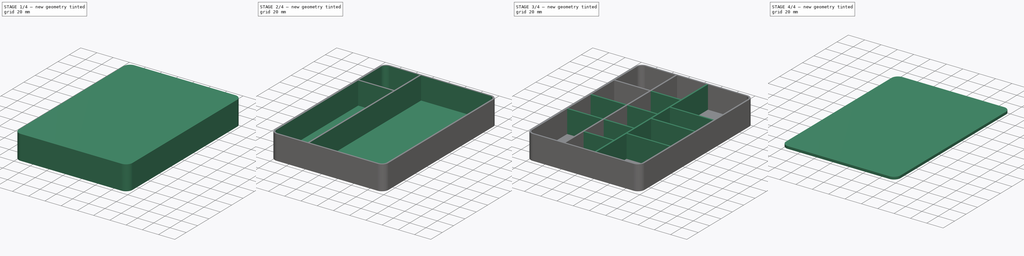
[diagram: build sequence overview — one tinted view per stage of 4, left to right]
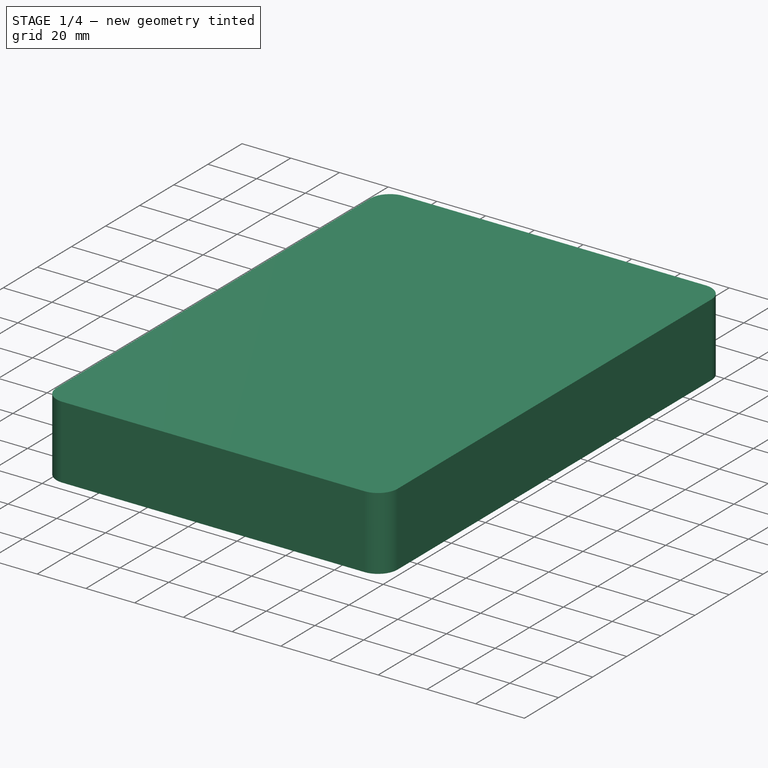
[diagram: stage 1 of 4 — iso view after this stage's code; geometry added in this stage tinted green]
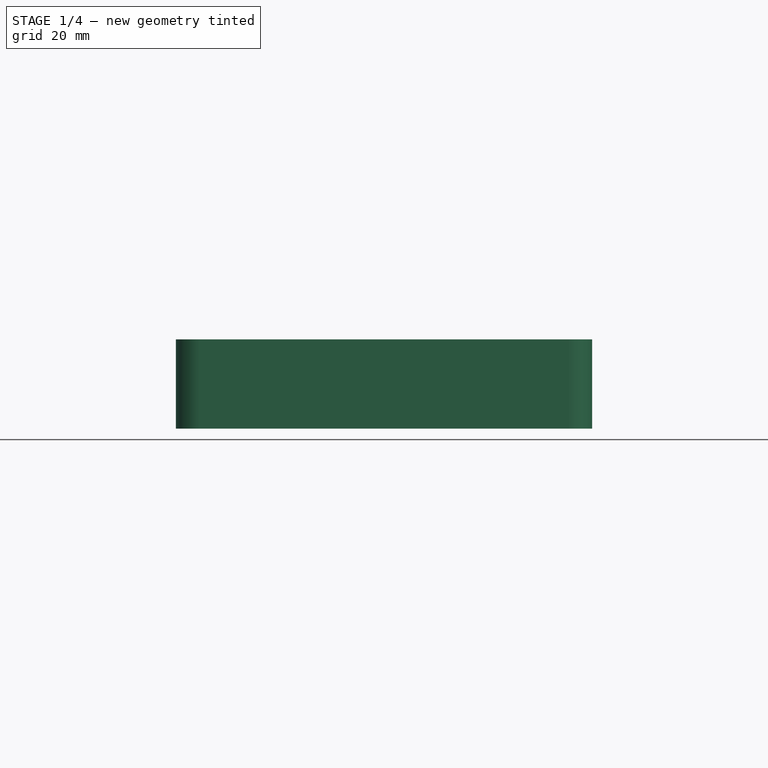
[diagram: stage 1 of 4 — front view after this stage's code; geometry added in this stage tinted green]
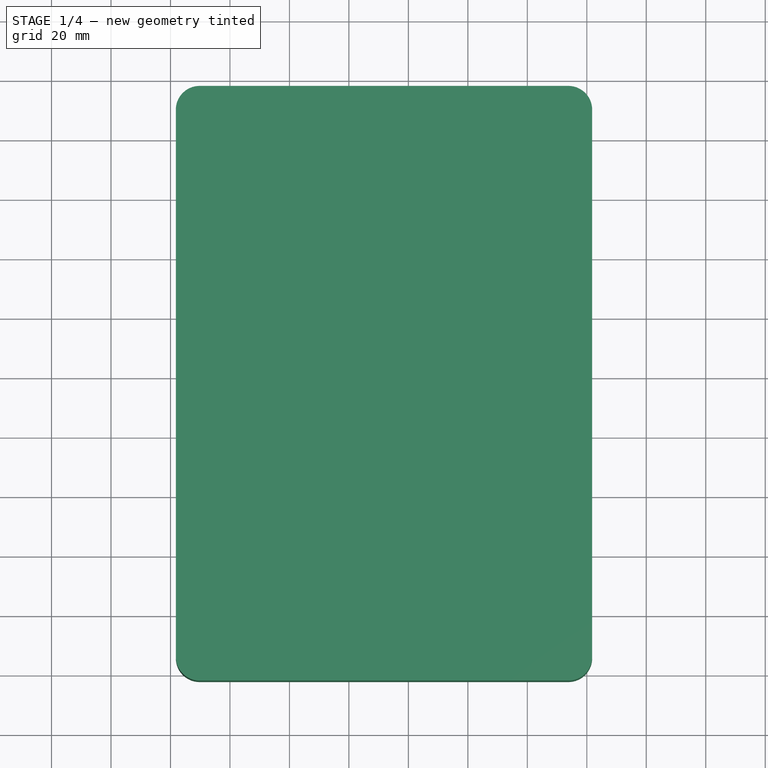
[diagram: stage 1 of 4 — top view after this stage's code; geometry added in this stage tinted green]
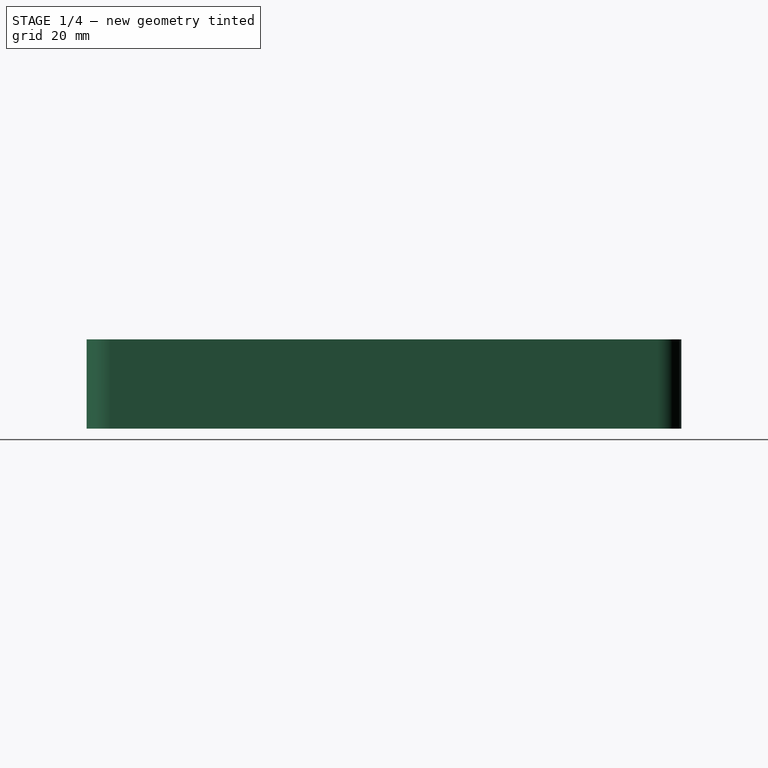
[diagram: stage 1 of 4 — right view after this stage's code; geometry added in this stage tinted green]
FCSTD DOCUMENT  (FreeCAD 1.2R20251230 (Git shallow))
Label: box_1
License: All rights reserved
LicenseURL: https://en.wikipedia.org/wiki/All_rights_reserved
objects: PartDesign::Pad×6, Sketcher::SketchObject×5, PartDesign::Thickness×2, PartDesign::Body×2, App::Point×2, PartDesign::Fillet×1, PartDesign::SubShapeBinder×1
note: 40 computed .brp shape members not serialized (recipe doc carries the construction recipe); baked Part::Feature solids carry a one-line shape summary decoded from their .brp

FEATURE [Sketcher::SketchObject] Sketch
  ArcFitTolerance = 1e-06
  ExternalTypes = [0]
  FullyConstrained = false
  MakeInternals = false
  sketch-geometry (4):
    g0: LineSegment StartX=81.8036 StartY=117.899 StartZ=0 EndX=-58.1964 EndY=117.899 EndZ=0
    g1: LineSegment StartX=-58.1964 StartY=117.899 StartZ=0 EndX=-58.1964 EndY=-82.1008 EndZ=0
    g2: LineSegment StartX=-58.1964 StartY=-82.1008 StartZ=0 EndX=81.8036 EndY=-82.1008 EndZ=0
    g3: LineSegment StartX=81.8036 StartY=-82.1008 StartZ=0 EndX=81.8036 EndY=117.899 EndZ=0
  constraints (10):
    c: Coincident(g0,g1)
    c: Coincident(g1,g2)
    c: Coincident(g2,g3)
    c: Coincident(g3,g0)
    c: Horizontal(g0)
    c: Horizontal(g2)
    c: Vertical(g1)
    c: Vertical(g3)
    c: DistanceY(g3,g3) = 200
    c: DistanceX(g0,g0) = 140
FEATURE [PartDesign::Pad] Pad
  Direction = (0,0,1)
  Length = 30
  Length2 = 10
  Profile = -> Sketch
  ReferenceAxis = -> Sketch [N_Axis]
  Refine = true
  SideType = 0
  Suppressed = false
  Type = 0
  Type2 = 0
FEATURE [PartDesign::Fillet] Fillet
  Base = -> Pad [Edge5,Edge8,Edge1,Edge2]
  BaseFeature = -> Pad
  Radius = 8
  Refine = true
  SupportTransform = false
  Suppressed = false
  UseAllEdges = false
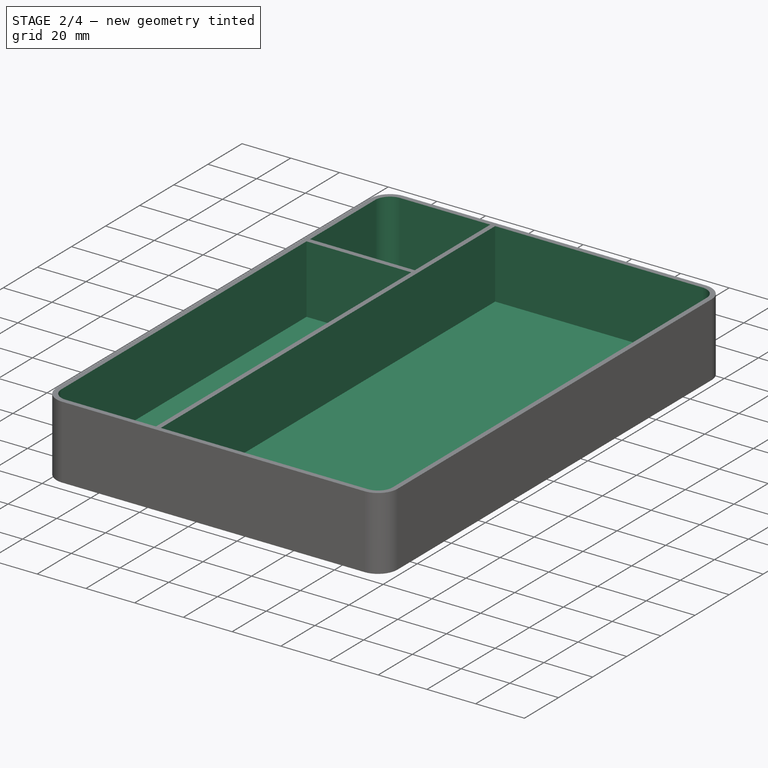
[diagram: stage 2 of 4 — iso view after this stage's code; geometry added in this stage tinted green]
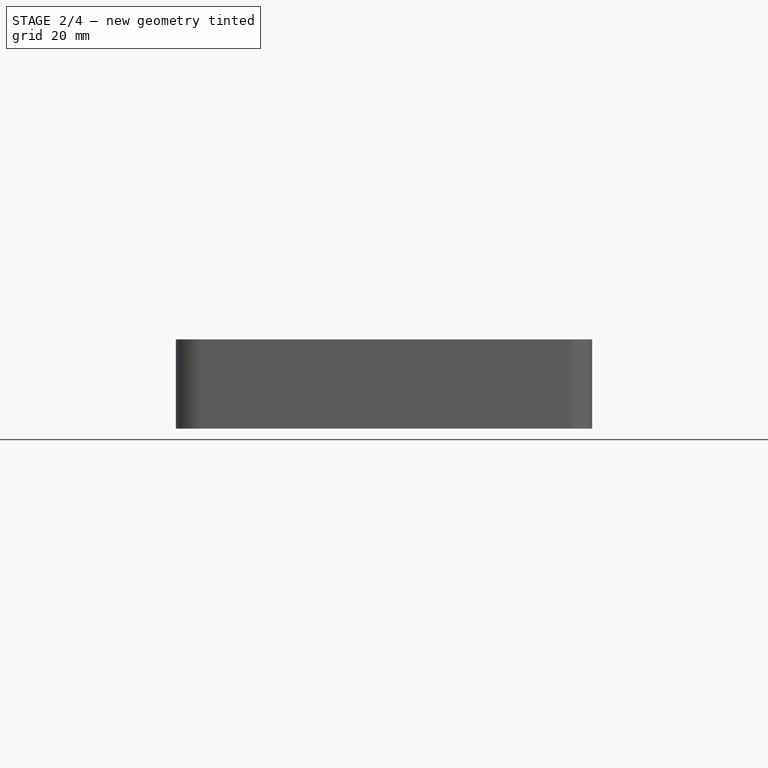
[diagram: stage 2 of 4 — front view after this stage's code; geometry added in this stage tinted green]
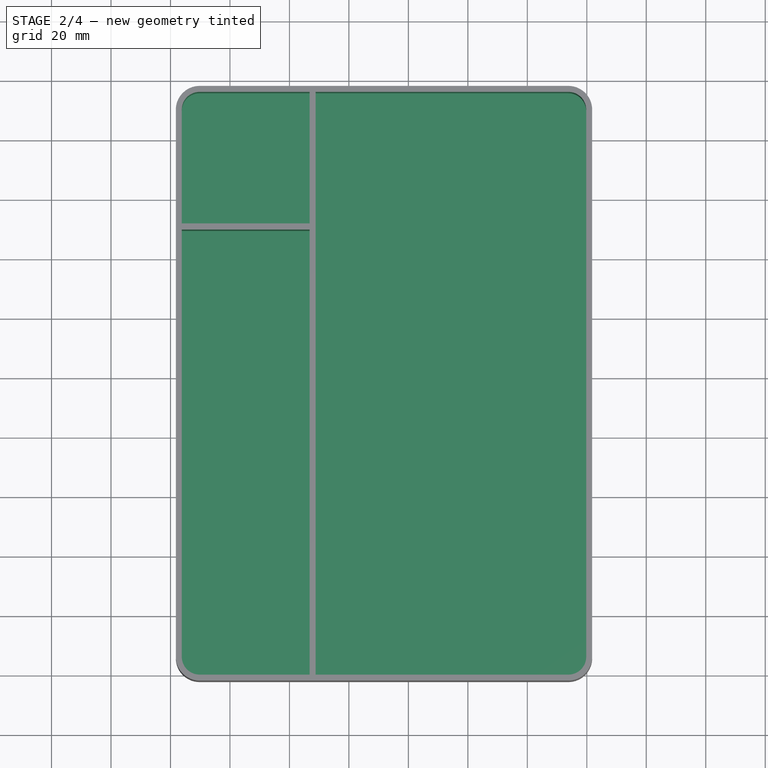
[diagram: stage 2 of 4 — top view after this stage's code; geometry added in this stage tinted green]
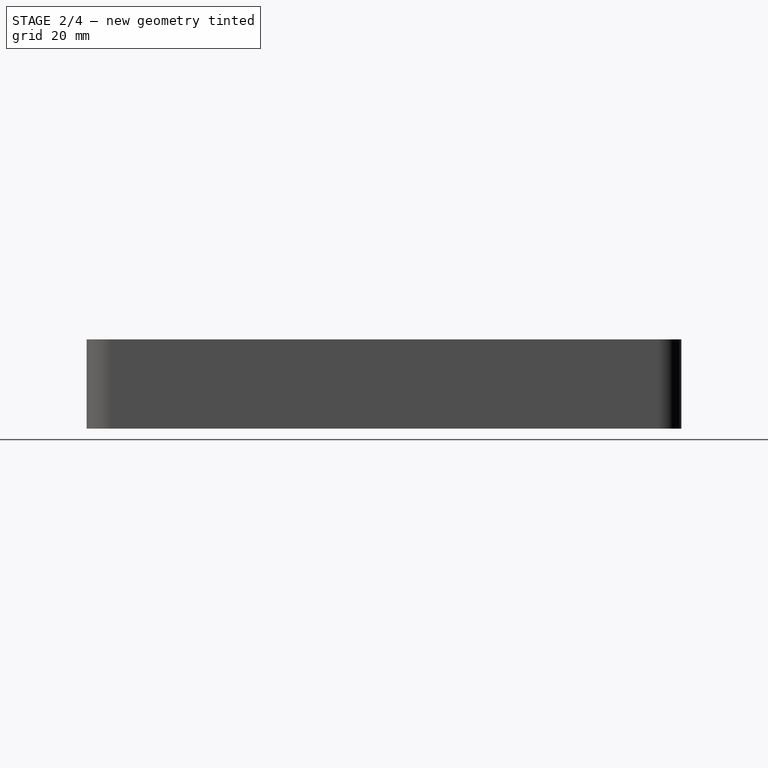
[diagram: stage 2 of 4 — right view after this stage's code; geometry added in this stage tinted green]
FEATURE [PartDesign::Thickness] Thickness
  Base = -> Fillet [Face5]
  BaseFeature = -> Fillet
  Intersection = false
  Join = 0
  Mode = 0
  Refine = true
  Reversed = true
  SupportTransform = false
  Suppressed = false
  Value = 2
FEATURE [Sketcher::SketchObject] Sketch001
  ArcFitTolerance = 1e-06
  AttachmentSupport = -> [Thickness]
  ExternalGeometry = -> [Thickness]
  ExternalTypes = [0]
  FullyConstrained = false
  MakeInternals = false
  MapMode = 5
  Placement = pos=(0,0,30) rot=(0,0,1;0rad)
  sketch-geometry (8):
    g0: LineSegment StartX=-13.1964 StartY=115.899 StartZ=0 EndX=-11.1964 EndY=115.899 EndZ=0
    g1: LineSegment StartX=-11.1964 StartY=115.899 StartZ=0 EndX=-11.1964 EndY=-80.1008 EndZ=0
    g2: LineSegment StartX=-11.1964 StartY=-80.1008 StartZ=0 EndX=-13.1964 EndY=-80.1008 EndZ=0
    g3: LineSegment StartX=-13.1964 StartY=-80.1008 StartZ=0 EndX=-13.1964 EndY=115.899 EndZ=0
    g4: LineSegment StartX=-56.1964 StartY=71.647 StartZ=0 EndX=-56.1964 EndY=69.5939 EndZ=0
    g5: LineSegment StartX=-56.1964 StartY=69.5939 StartZ=0 EndX=-13.1964 EndY=69.5939 EndZ=0
    g6: LineSegment StartX=-13.1964 StartY=69.5939 StartZ=0 EndX=-13.1964 EndY=71.647 EndZ=0
    g7: LineSegment StartX=-13.1964 StartY=71.647 StartZ=0 EndX=-56.1964 EndY=71.647 EndZ=0
  constraints (22):
    c: Coincident(g0,g1)
    c: Coincident(g1,g2)
    c: Coincident(g2,g3)
    c: Coincident(g3,g0)
    c: Horizontal(g0)
    c: Horizontal(g2)
    c: Vertical(g1)
    c: Vertical(g3)
    c: PointOnObject(g0,g-3)
    c: PointOnObject(g1,g-6)
    c: Distance(g-5,g1) = 45
    c: DistanceX(g0,g0) = 2
    c: Coincident(g4,g5)
    c: Coincident(g5,g6)
    c: Coincident(g6,g7)
    c: Coincident(g7,g4)
    c: Vertical(g4)
    c: Vertical(g6)
    c: Horizontal(g5)
    c: Horizontal(g7)
    c: PointOnObject(g4,g-5)
    c: PointOnObject(g5,g3)
FEATURE [PartDesign::Pad] Pad001
  BaseFeature = -> Thickness
  Direction = (0,0,1)
  Length = 10
  Length2 = 10
  Profile = -> Sketch001
  ReferenceAxis = -> Sketch001 [N_Axis]
  Refine = true
  SideType = 0
  Suppressed = false
  Type = 3
  Type2 = 0
  UpToFace = -> Thickness [Face19]
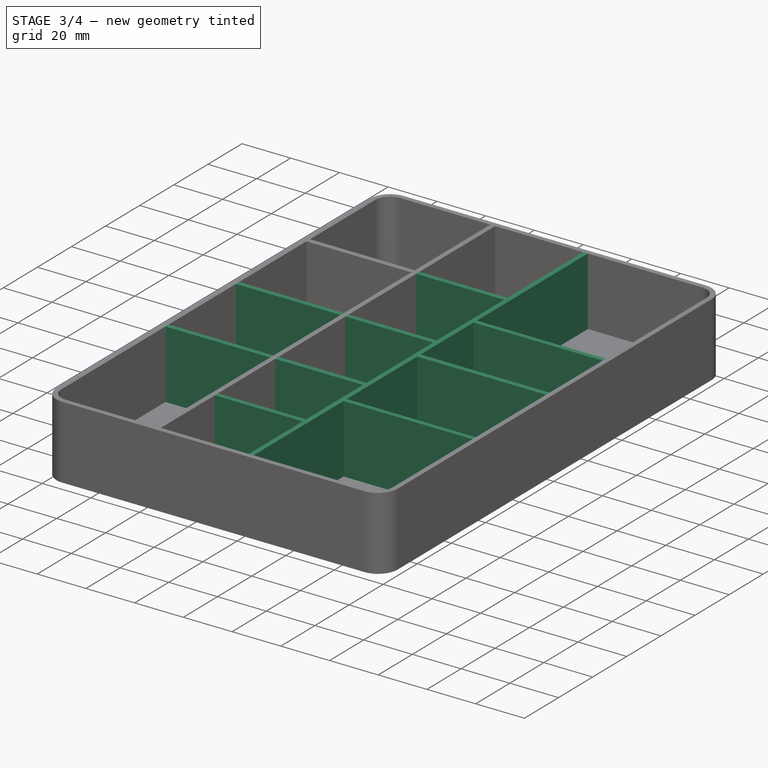
[diagram: stage 3 of 4 — iso view after this stage's code; geometry added in this stage tinted green]
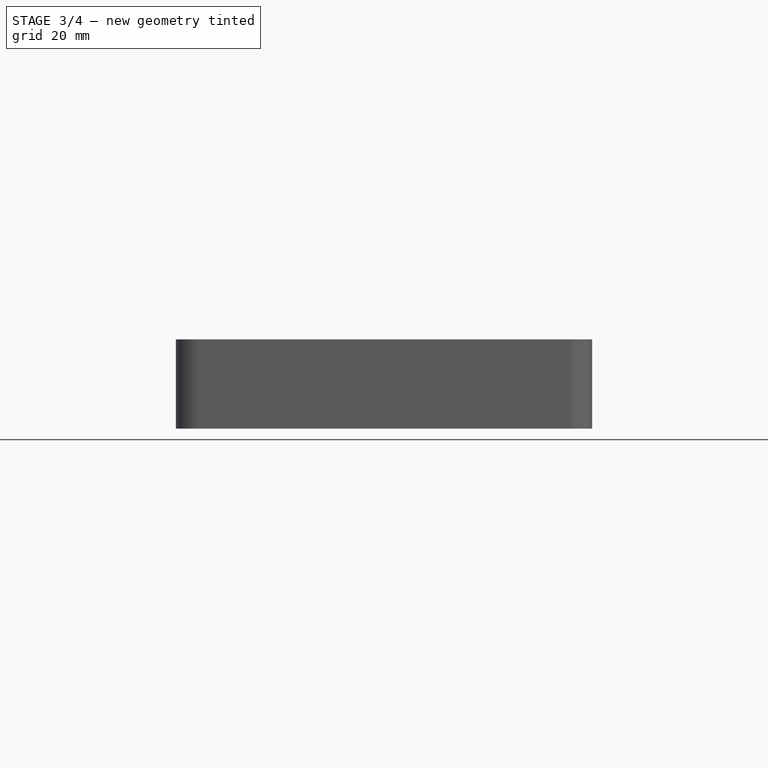
[diagram: stage 3 of 4 — front view after this stage's code; geometry added in this stage tinted green]
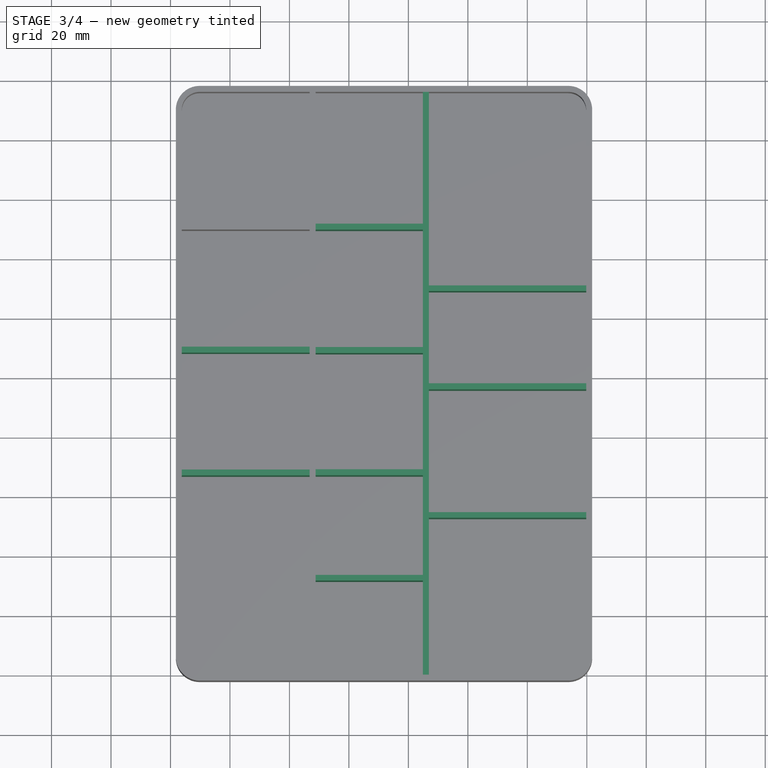
[diagram: stage 3 of 4 — top view after this stage's code; geometry added in this stage tinted green]
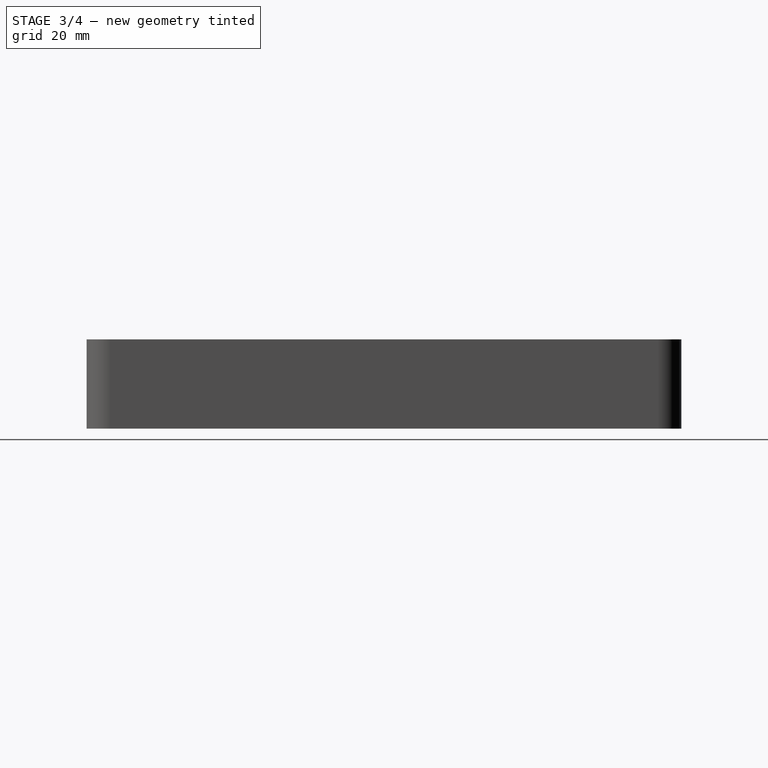
[diagram: stage 3 of 4 — right view after this stage's code; geometry added in this stage tinted green]
FEATURE [Sketcher::SketchObject] Sketch002
  ArcFitTolerance = 1e-06
  AttachmentSupport = -> [Pad001]
  ExternalGeometry = -> [Pad001]
  ExternalTypes = [0]
  FullyConstrained = false
  MakeInternals = false
  MapMode = 5
  Placement = pos=(0,0,2) rot=(0,0,1;0rad)
  sketch-geometry (32):
    g0: LineSegment StartX=24.8863 StartY=115.899 StartZ=0 EndX=24.8863 EndY=-80.1008 EndZ=0
    g1: LineSegment StartX=24.8863 StartY=-80.1008 StartZ=0 EndX=26.8863 EndY=-80.1008 EndZ=0
    g2: LineSegment StartX=26.8863 StartY=-80.1008 StartZ=0 EndX=26.8863 EndY=115.899 EndZ=0
    g3: LineSegment StartX=26.8863 StartY=115.899 StartZ=0 EndX=24.8863 EndY=115.899 EndZ=0
    g4: LineSegment StartX=-11.1964 StartY=71.5636 StartZ=0 EndX=-11.1964 EndY=69.5616 EndZ=0
    g5: LineSegment StartX=-11.1964 StartY=69.5616 StartZ=0 EndX=24.8863 EndY=69.5616 EndZ=0
    g6: LineSegment StartX=24.8863 StartY=69.5616 StartZ=0 EndX=24.8863 EndY=71.5636 EndZ=0
    g7: LineSegment StartX=24.8863 StartY=71.5636 StartZ=0 EndX=-11.1964 EndY=71.5636 EndZ=0
    g8: LineSegment StartX=-11.1964 StartY=30.0997 StartZ=0 EndX=-11.1964 EndY=28.0687 EndZ=0
    g9: LineSegment StartX=-11.1964 StartY=28.0687 StartZ=0 EndX=24.8863 EndY=28.0687 EndZ=0
    g10: LineSegment StartX=24.8863 StartY=28.0687 StartZ=0 EndX=24.8863 EndY=30.0997 EndZ=0
    g11: LineSegment StartX=24.8863 StartY=30.0997 StartZ=0 EndX=-11.1964 EndY=30.0997 EndZ=0
    g12: LineSegment StartX=-11.1964 StartY=-11.0304 StartZ=0 EndX=-11.1964 EndY=-13.0614 EndZ=0
    g13: LineSegment StartX=-11.1964 StartY=-13.0614 StartZ=0 EndX=24.8863 EndY=-13.0614 EndZ=0
    g14: LineSegment StartX=24.8863 StartY=-13.0614 StartZ=0 EndX=24.8863 EndY=-11.0304 EndZ=0
    g15: LineSegment StartX=24.8863 StartY=-11.0304 StartZ=0 EndX=-11.1964 EndY=-11.0304 EndZ=0
    g16: LineSegment StartX=-11.1964 StartY=-46.5596 StartZ=0 EndX=-11.1964 EndY=-48.461 EndZ=0
    g17: LineSegment StartX=-11.1964 StartY=-48.461 StartZ=0 EndX=24.8863 EndY=-48.461 EndZ=0
    g18: LineSegment StartX=24.8863 StartY=-48.461 StartZ=0 EndX=24.8863 EndY=-46.5596 EndZ=0
    g19: LineSegment StartX=24.8863 StartY=-46.5596 StartZ=0 EndX=-11.1964 EndY=-46.5596 EndZ=0
    g20: LineSegment StartX=26.8863 StartY=50.7981 StartZ=0 EndX=26.8863 EndY=48.9012 EndZ=0
    g21: LineSegment StartX=26.8863 StartY=48.9012 StartZ=0 EndX=80.5904 EndY=48.9012 EndZ=0
    g22: LineSegment StartX=80.5904 StartY=48.9012 StartZ=0 EndX=80.5904 EndY=50.7981 EndZ=0
    g23: LineSegment StartX=80.5904 StartY=50.7981 StartZ=0 EndX=26.8863 EndY=50.7981 EndZ=0
    g24: LineSegment StartX=26.8863 StartY=17.8992 StartZ=0 EndX=26.8863 EndY=15.8255 EndZ=0
    g25: LineSegment StartX=26.8863 StartY=15.8255 StartZ=0 EndX=79.8863 EndY=15.8255 EndZ=0
    g26: LineSegment StartX=79.8863 StartY=15.8255 StartZ=0 EndX=79.8863 EndY=17.8992 EndZ=0
    g27: LineSegment StartX=79.8863 StartY=17.8992 StartZ=0 EndX=26.8863 EndY=17.8992 EndZ=0
    g28: LineSegment StartX=26.8863 StartY=-25.4452 StartZ=0 EndX=26.8863 EndY=-27.3421 EndZ=0
    g29: LineSegment StartX=26.8863 StartY=-27.3421 StartZ=0 EndX=79.8036 EndY=-27.3421 EndZ=0
    g30: LineSegment StartX=79.8036 StartY=-27.3421 StartZ=0 EndX=79.8036 EndY=-25.4452 EndZ=0
    g31: LineSegment StartX=79.8036 StartY=-25.4452 StartZ=0 EndX=26.8863 EndY=-25.4452 EndZ=0
  constraints (80):
    c: Coincident(g0,g1)
    c: Coincident(g1,g2)
    c: Coincident(g2,g3)
    c: Coincident(g3,g0)
    c: Vertical(g0)
    c: Vertical(g2)
    c: Horizontal(g1)
    c: Horizontal(g3)
    c: PointOnObject(g0,g-3)
    c: PointOnObject(g1,g-5)
    c: DistanceX(g1,g1) = 2
    c: Coincident(g4,g5)
    c: Coincident(g5,g6)
    c: Coincident(g6,g7)
    c: Coincident(g7,g4)
    c: Vertical(g4)
    c: Vertical(g6)
    c: Horizontal(g5)
    c: Horizontal(g7)
    c: PointOnObject(g4,g-4)
    c: PointOnObject(g5,g0)
    c: Coincident(g8,g9)
    c: Coincident(g9,g10)
    c: Coincident(g10,g11)
    c: Coincident(g11,g8)
    c: Vertical(g8)
    c: Vertical(g10)
    c: Horizontal(g9)
    c: Horizontal(g11)
    c: PointOnObject(g8,g-4)
    c: PointOnObject(g9,g0)
    c: Coincident(g12,g13)
    c: Coincident(g13,g14)
    c: Coincident(g14,g15)
    c: Coincident(g15,g12)
    c: Vertical(g12)
    c: Vertical(g14)
    c: Horizontal(g13)
    c: Horizontal(g15)
    c: PointOnObject(g12,g-4)
    c: PointOnObject(g13,g0)
    c: Coincident(g16,g17)
    c: Coincident(g17,g18)
    c: Coincident(g18,g19)
    c: Coincident(g19,g16)
    c: Vertical(g16)
    c: Vertical(g18)
    c: Horizontal(g17)
    c: Horizontal(g19)
    c: PointOnObject(g16,g-4)
    c: PointOnObject(g17,g0)
    c: Coincident(g20,g21)
    c: Coincident(g21,g22)
    c: Coincident(g22,g23)
    c: Coincident(g23,g20)
    c: Vertical(g20)
    c: Vertical(g22)
    c: Horizontal(g21)
    c: Horizontal(g23)
    c: PointOnObject(g20,g2)
    c: Coincident(g24,g25)
    c: Coincident(g25,g26)
    c: Coincident(g26,g27)
    c: Coincident(g27,g24)
    c: Vertical(g24)
    c: Vertical(g26)
    c: Horizontal(g25)
    c: Horizontal(g27)
    c: Symmetric(g2,g2,g24)
    c: Distance(g27,g27) = 53
    c: Coincident(g28,g29)
    c: Coincident(g29,g30)
    c: Coincident(g30,g31)
    c: Coincident(g31,g28)
    c: Vertical(g28)
    c: Vertical(g30)
    c: Horizontal(g29)
    c: Horizontal(g31)
    c: PointOnObject(g28,g2)
    c: PointOnObject(g29,g-6)
FEATURE [PartDesign::Pad] Pad002
  BaseFeature = -> Pad001
  Direction = (0,0,1)
  Length = 10
  Length2 = 10
  Profile = -> Sketch002
  ReferenceAxis = -> Sketch002 [N_Axis]
  Refine = true
  SideType = 0
  Suppressed = false
  Type = 0
  Type2 = 0
FEATURE [PartDesign::Pad] Pad003
  BaseFeature = -> Pad002
  Direction = (0,0,1)
  Length = 10
  Length2 = 10
  Profile = -> Sketch002
  ReferenceAxis = -> Sketch002 [N_Axis]
  Refine = true
  SideType = 0
  Suppressed = false
  Type = 3
  Type2 = 0
  UpToFace = -> Pad002 [Face5]
FEATURE [Sketcher::SketchObject] Sketch003
  ArcFitTolerance = 1e-06
  AttachmentSupport = -> [XY_Plane]
  ExternalGeometry = -> [Pad003]
  ExternalTypes = [0]
  FullyConstrained = false
  MakeInternals = false
  MapMode = 5
  sketch-geometry (12):
    g0: LineSegment [constr] StartX=-13.1964 StartY=28.2047 StartZ=0 EndX=-44.6152 EndY=28.2047 EndZ=0
    g1: LineSegment [constr] StartX=-44.6152 StartY=28.2047 StartZ=0 EndX=-44.6152 EndY=23.4513 EndZ=0
    g2: LineSegment [constr] StartX=-44.6152 StartY=23.4513 StartZ=0 EndX=-13.1964 EndY=23.4513 EndZ=0
    g3: LineSegment [constr] StartX=-13.1964 StartY=23.4513 StartZ=0 EndX=-13.1964 EndY=28.2047 EndZ=0
    g4: LineSegment StartX=-56.1964 StartY=30.2047 StartZ=0 EndX=-56.1964 EndY=28.2047 EndZ=0
    g5: LineSegment StartX=-56.1964 StartY=28.2047 StartZ=0 EndX=-13.1964 EndY=28.2047 EndZ=0
    g6: LineSegment StartX=-13.1964 StartY=28.2047 StartZ=0 EndX=-13.1964 EndY=30.2047 EndZ=0
    g7: LineSegment StartX=-13.1964 StartY=30.2047 StartZ=0 EndX=-56.1964 EndY=30.2047 EndZ=0
    g8: LineSegment StartX=-56.1964 StartY=-11.1142 StartZ=0 EndX=-56.1964 EndY=-13.1142 EndZ=0
    g9: LineSegment StartX=-56.1964 StartY=-13.1142 StartZ=0 EndX=-13.1964 EndY=-13.1142 EndZ=0
    g10: LineSegment StartX=-13.1964 StartY=-13.1142 StartZ=0 EndX=-13.1964 EndY=-11.1142 EndZ=0
    g11: LineSegment StartX=-13.1964 StartY=-11.1142 StartZ=0 EndX=-56.1964 EndY=-11.1142 EndZ=0
  constraints (30):
    c: Coincident(g0,g1)
    c: Coincident(g1,g2)
    c: Coincident(g2,g3)
    c: Coincident(g3,g0)
    c: Horizontal(g0)
    c: Horizontal(g2)
    c: Vertical(g1)
    c: Vertical(g3)
    c: Coincident(g4,g5)
    c: Coincident(g5,g6)
    c: Coincident(g6,g7)
    c: Coincident(g7,g4)
    c: Vertical(g4)
    c: Vertical(g6)
    c: Horizontal(g5)
    c: Horizontal(g7)
    c: PointOnObject(g4,g-4)
    c: Coincident(g5,g0)
    c: Coincident(g8,g9)
    c: Coincident(g9,g10)
    c: Coincident(g10,g11)
    c: Coincident(g11,g8)
    c: Vertical(g8)
    c: Vertical(g10)
    c: Horizontal(g9)
    c: Horizontal(g11)
    c: PointOnObject(g8,g-4)
    c: PointOnObject(g9,g-7)
    c: DistanceY(g8,g8) = 2
    c: DistanceY(g4,g4) = 2
FEATURE [PartDesign::Pad] Pad004
  BaseFeature = -> Pad003
  Direction = (0,0,1)
  Length = 10
  Length2 = 10
  Profile = -> Sketch003
  ReferenceAxis = -> Sketch003 [N_Axis]
  Refine = true
  SideType = 0
  Suppressed = false
  Type = 3
  Type2 = 0
  UpToFace = -> Pad003 [Face10]
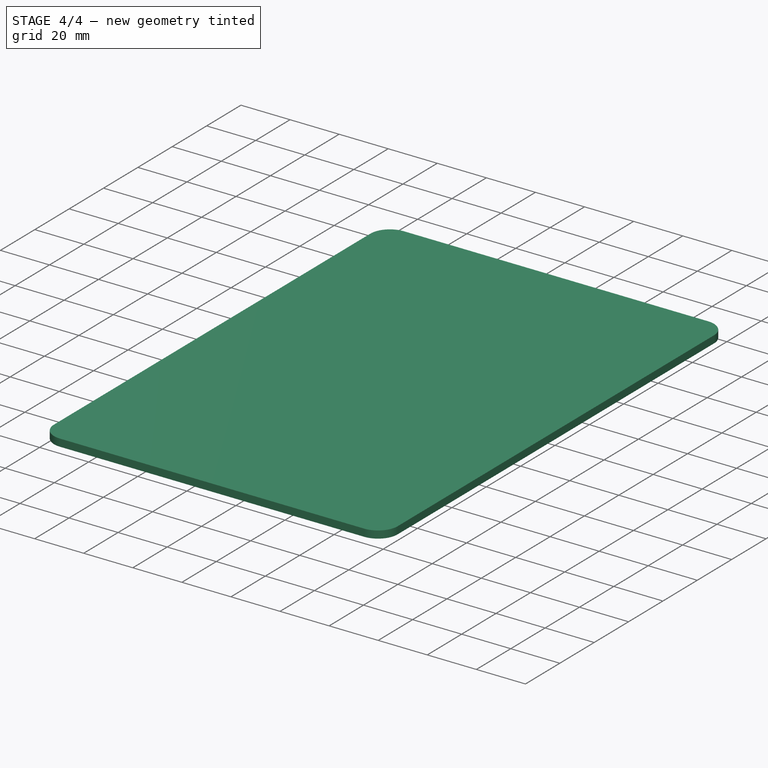
[diagram: stage 4 of 4 — iso view after this stage's code; geometry added in this stage tinted green]
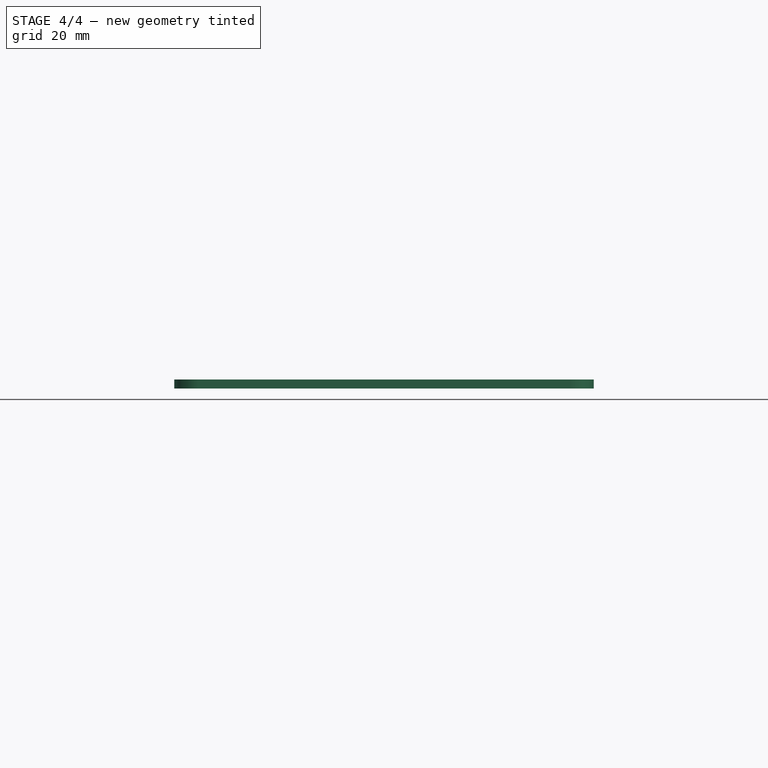
[diagram: stage 4 of 4 — front view after this stage's code; geometry added in this stage tinted green]
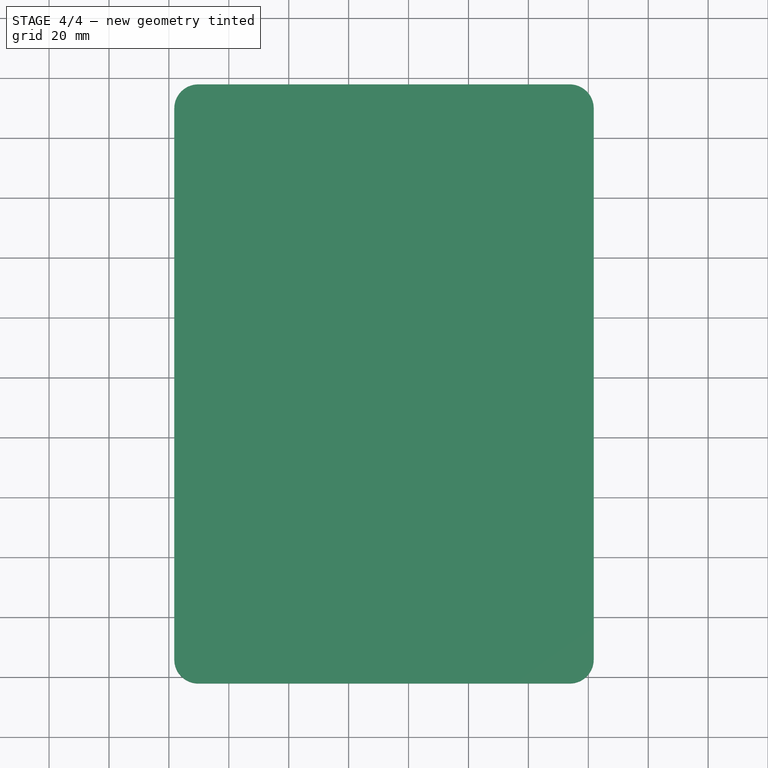
[diagram: stage 4 of 4 — top view after this stage's code; geometry added in this stage tinted green]
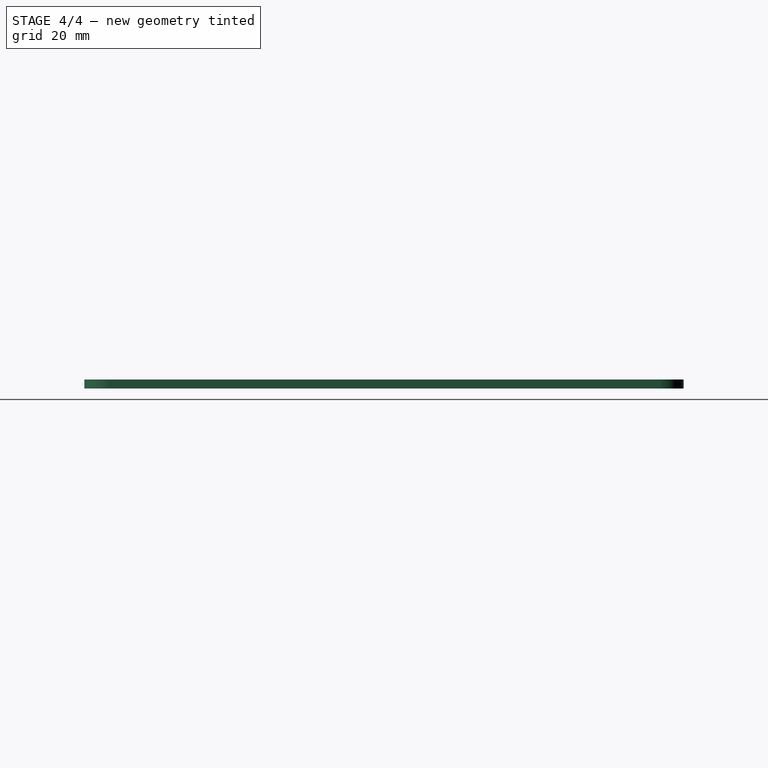
[diagram: stage 4 of 4 — right view after this stage's code; geometry added in this stage tinted green]
FEATURE [PartDesign::Body] Body
  AllowCompound = false
  Group = -> [Sketch,Pad,Fillet,Thickness,Sketch001,Pad001,Sketch002,Pad002,Pad003,Sketch003,Pad004]
  Origin = -> Origin
  Tip = -> Pad004
FEATURE [PartDesign::SubShapeBinder] Binder
  BindCopyOnChange = 0
  BindMode = 0
  ClaimChildren = false
  Context = -> Body001 [Binder.]
  Fuse = false
  MakeFace = true
  OffsetFill = false
  OffsetIntersection = false
  OffsetJoinType = 0
  OffsetOpenResult = false
  PartialLoad = false
  Refine = true
  Relative = true
  Support = -> [Body[Pad004.Face9]]
  _Version = 2
FEATURE [Sketcher::SketchObject] Sketch004
  ArcFitTolerance = 1e-06
  AttachmentSupport = -> [XY_Plane001]
  ExternalTypes = [0]
  FullyConstrained = true
  MakeInternals = false
  MapMode = 5
FEATURE [PartDesign::Pad] Pad005
  Direction = (0,0,-1)
  Length = 3
  Length2 = 10
  Profile = -> Binder
  Refine = true
  SideType = 0
  Suppressed = false
  Type = 0
  Type2 = 0
FEATURE [PartDesign::Thickness] Thickness001
  Base = -> Pad005
  BaseFeature = -> Pad005
  Intersection = false
  Join = 0
  Mode = 0
  Refine = true
  Reversed = true
  SupportTransform = false
  Suppressed = false
  Value = 1.9
FEATURE [PartDesign::Body] Body001  label="cover"
  AllowCompound = false
  Group = -> [Sketch004,Binder,Pad005,Thickness001]
  Origin = -> Origin001
  Placement = pos=(0,0,50) rot=(0,0,1;0rad)
  Tip = -> Thickness001
FEATURE [App::Point] Origin002  label="原点"
  Role = Origin
FEATURE [App::Point] Origin003  label="原点"
  Role = Origin
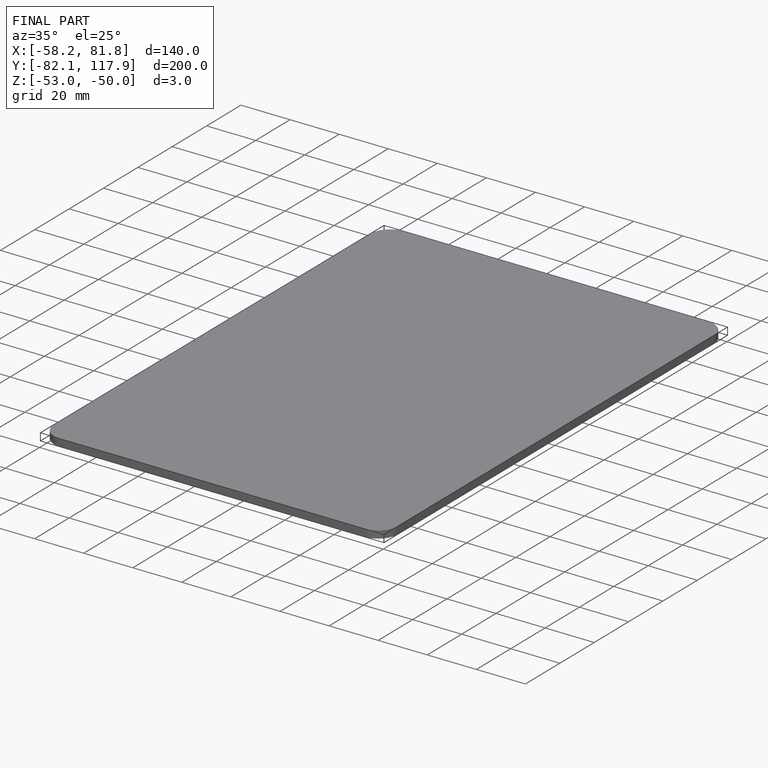
[diagram: finished part — iso view with bounding-box wireframe]
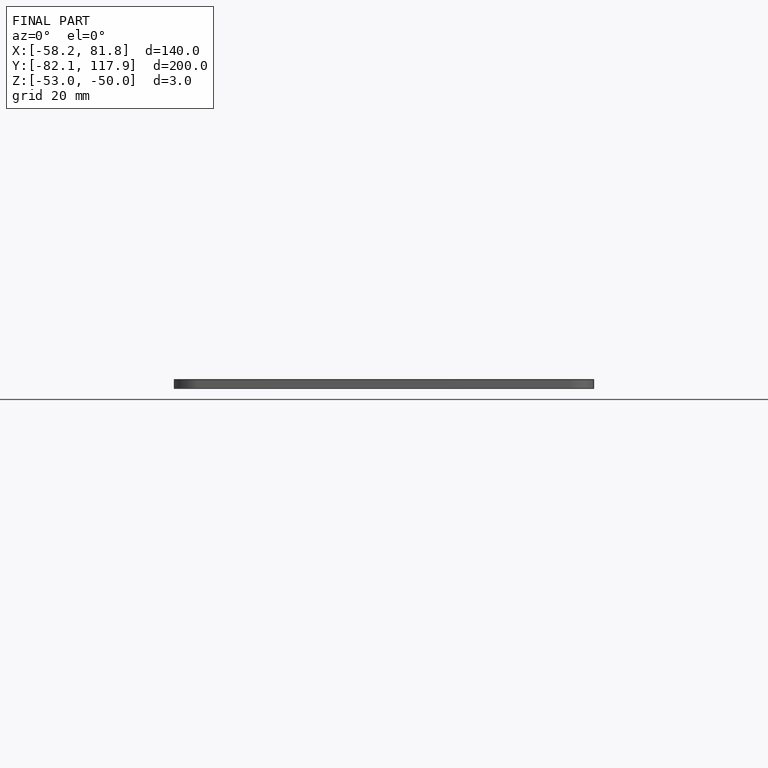
[diagram: finished part — front view with bounding-box wireframe]
